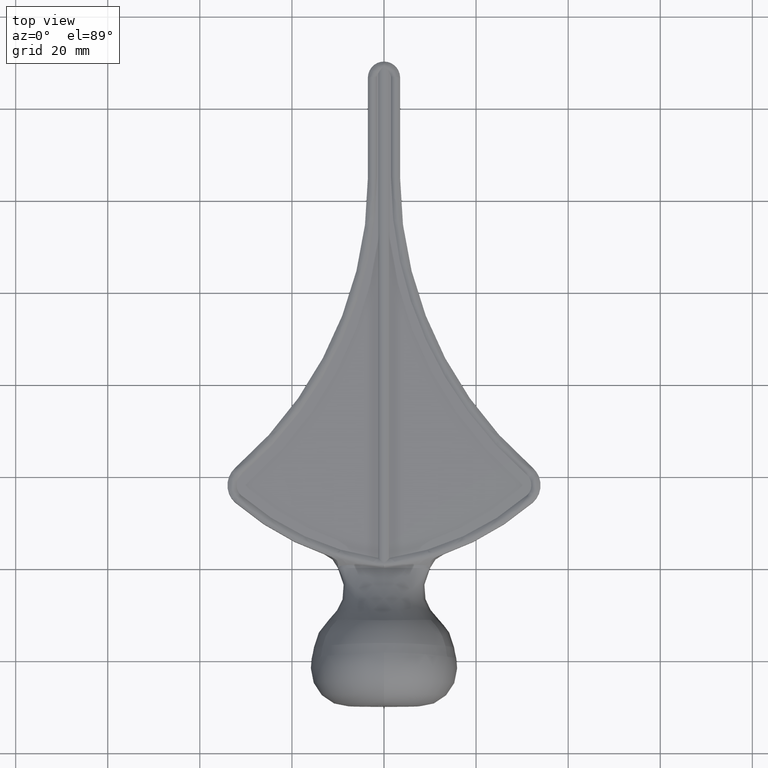
[diagram: clean part render]
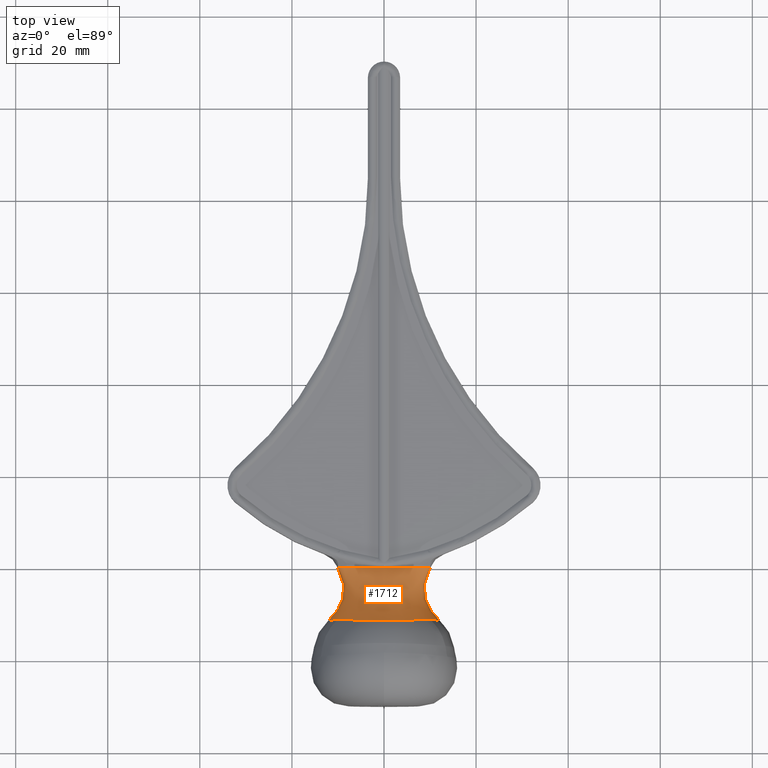
[diagram: same view with one face highlighted and labeled with its STEP entity id]
A machine part, top view. The second image highlights one B-rep face of the part: STEP entity #1712.
In plain terms, the highlighted face is a freeform B-spline surface patch.
Its self-contained STEP definition (entity closure, byte-faithful):
#24 = CARTESIAN_POINT ( 'NONE',  ( -14.79807976622295307, -13.49999999999999822, 8.058841538814844441 ) ) ;
#39 = CARTESIAN_POINT ( 'NONE',  ( -9.920780398255635291, 0.000000000000000000, -0.5799138068464337881 ) ) ;
#58 = CARTESIAN_POINT ( 'NONE',  ( 1.738102099250709465, -11.55873877459060139, -11.02512302721180149 ) ) ;
#101 = CARTESIAN_POINT ( 'NONE',  ( 0.7778716535712940638, -11.55783311141066427, -11.11930339254404920 ) ) ;
#190 = CARTESIAN_POINT ( 'NONE',  ( 0.8048657649686383753, -2.557833111410670046, -3.618924855208206282 ) ) ;
#215 = CARTESIAN_POINT ( 'NONE',  ( -5.017105279613049973, 0.000000000000000000, -2.379088583161654835 ) ) ;
#230 = CARTESIAN_POINT ( 'NONE',  ( -0.07056080905660562508, 0.000000000000000000, -2.749936689291388792 ) ) ;
#290 = CARTESIAN_POINT ( 'NONE',  ( -11.25661552296435453, -11.31668729277588525, 4.214164415989814394 ) ) ;
#295 = CARTESIAN_POINT ( 'NONE',  ( 3.607364614252731805, 0.000000000000000000, -2.614140368541553183 ) ) ;
#305 =( BOUNDED_CURVE ( )  B_SPLINE_CURVE ( 3, ( #5786, #6811, #12513, #2901 ),
 .UNSPECIFIED., .F., .F. ) 
 B_SPLINE_CURVE_WITH_KNOTS ( ( 4, 4 ),
 ( 0.5476375437812448510, 1.000000000000000000 ),
 .UNSPECIFIED. ) 
 CURVE ( )  GEOMETRIC_REPRESENTATION_ITEM ( )  RATIONAL_B_SPLINE_CURVE ( ( 1.000000000000000000, 0.9805718479335734372, 0.9805718479335734372, 1.000000000000000000 ) ) 
 REPRESENTATION_ITEM ( '' )  );
#379 = CARTESIAN_POINT ( 'NONE',  ( 8.650460228036926935, 0.000000000000000000, -1.379868267672305526 ) ) ;
#406 = CARTESIAN_POINT ( 'NONE',  ( 9.991471267502594955, 0.000000000000000000, -0.1142382231562296541 ) ) ;
#452 = CARTESIAN_POINT ( 'NONE',  ( 11.22405447762727881, -11.31017139136639571, 4.183211305914076306 ) ) ;
#539 = CARTESIAN_POINT ( 'NONE',  ( 6.560686561880376466, -11.43058828181606756, -9.456479682900058137 ) ) ;
#581 = CARTESIAN_POINT ( 'NONE',  ( 10.12566088149412202, -11.35045129782749207, -6.099448551371120963 ) ) ;
#584 = CARTESIAN_POINT ( 'NONE',  ( 6.136940722360614942, -11.43978382923295811, -9.705372545133389650 ) ) ;
#659 = CARTESIAN_POINT ( 'NONE',  ( -8.929547355695207855, -11.34926402511476340, 7.613831055689638916 ) ) ;
#691 = CARTESIAN_POINT ( 'NONE',  ( -10.00295216859699998, -4.362651232857618194E-06, 0.03760627262439359547 ) ) ;
#698 = CARTESIAN_POINT ( 'NONE',  ( 10.15598599543717917, -11.32026937856585924, 6.065483669277768719 ) ) ;
#703 = CARTESIAN_POINT ( 'NONE',  ( 1.965892169988797233, -11.50363538718791823, -11.15422705489817012 ) ) ;
#718 = VERTEX_POINT ( 'NONE', #1572 ) ;
#733 = CARTESIAN_POINT ( 'NONE',  ( -3.900842387993377347, -11.46705315637167821, 10.68736818806584132 ) ) ;
#779 = CARTESIAN_POINT ( 'NONE',  ( 8.539450855515456240, -11.35301401544359301, 7.948638750988241242 ) ) ;
#827 = CARTESIAN_POINT ( 'NONE',  ( -1.982506615988486098, -11.49840621901639715, 11.15113312534687218 ) ) ;
#845 = CARTESIAN_POINT ( 'NONE',  ( -1.590975022133877870, -13.49999999999999822, -13.93715592981533291 ) ) ;
#891 = CARTESIAN_POINT ( 'NONE',  ( -7.918258005399948729, -13.49999999999999822, 14.18047830708938761 ) ) ;
#926 = CARTESIAN_POINT ( 'NONE',  ( 9.991366785054234256, 0.000000000000000000, 0.1145396942222438041 ) ) ;
#933 = CARTESIAN_POINT ( 'NONE',  ( -2.143397888626186631, -11.55911066163292489, -10.96704382032714520 ) ) ;
#976 = CARTESIAN_POINT ( 'NONE',  ( 0.09424638433143267546, 0.000000000000000000, -2.749877864549611584 ) ) ;
#1018 = CARTESIAN_POINT ( 'NONE',  ( -2.790007496405103371, -13.49999999999999822, -13.77285986999059375 ) ) ;
#1055 = CARTESIAN_POINT ( 'NONE',  ( 0.09424638433143267546, 0.000000000000000000, -2.749877864549611584 ) ) ;
#1137 = CARTESIAN_POINT ( 'NONE',  ( 1.717647090605003202, 0.000000000000000000, -2.712492312361287183 ) ) ;
#1176 = CARTESIAN_POINT ( 'NONE',  ( 1.335199251863497416, -7.649600508219394079, -6.518159116680444676 ) ) ;
#1200 = CARTESIAN_POINT ( 'NONE',  ( -11.20444264746529939, -11.32793503507644495, -4.211640944872532266 ) ) ;
#1214 = CARTESIAN_POINT ( 'NONE',  ( 0.1250215703381017396, -11.55765573307647820, -11.13429741969730458 ) ) ;
#1223 = EDGE_CURVE ( 'NONE', #718, #2945, #6745, .T. ) ;
#1246 = CARTESIAN_POINT ( 'NONE',  ( -9.991366707272016257, 0.000000000000000000, -0.1145402100517818739 ) ) ;
#1249 = VERTEX_POINT ( 'NONE', #1246 ) ;
#1272 = CARTESIAN_POINT ( 'NONE',  ( -1.818548193513661815, 0.000000000000000000, -2.746539595238569831 ) ) ;
#1281 = CARTESIAN_POINT ( 'NONE',  ( -12.08300563819590145, -11.32391960113699092, -0.5419873673572409567 ) ) ;
#1294 = ORIENTED_EDGE ( 'NONE', *, *, #12206, .F. ) ;
#1326 = CARTESIAN_POINT ( 'NONE',  ( -11.41213739686249440, -11.32622757331808749, -3.706732127521402909 ) ) ;
#1414 =( BOUNDED_CURVE ( )  B_SPLINE_CURVE ( 3, ( #5796, #10617, #10781, #926 ),
 .UNSPECIFIED., .F., .F. ) 
 B_SPLINE_CURVE_WITH_KNOTS ( ( 4, 4 ),
 ( 6.241637736543037107, 6.324845757482896680 ),
 .UNSPECIFIED. ) 
 CURVE ( )  GEOMETRIC_REPRESENTATION_ITEM ( )  RATIONAL_B_SPLINE_CURVE ( ( 1.000000000000000000, 0.9994231186548310220, 0.9994231186548310220, 1.000000000000000000 ) ) 
 REPRESENTATION_ITEM ( '' )  );
#1427 = ORIENTED_EDGE ( 'NONE', *, *, #1562, .F. ) ;
#1437 = CARTESIAN_POINT ( 'NONE',  ( 12.03775609772259436, -11.32508297606502445, -1.104809005413106338 ) ) ;
#1440 = EDGE_CURVE ( 'NONE', #5649, #12624, #3863, .T. ) ;
#1468 = CARTESIAN_POINT ( 'NONE',  ( -4.206561262014433034, 0.000000000000000000, 2.499528057705930895 ) ) ;
#1476 = CARTESIAN_POINT ( 'NONE',  ( -2.512292229807338462, 0.000000000000000000, 2.684523506155640948 ) ) ;
#1482 = CARTESIAN_POINT ( 'NONE',  ( 10.74235572658314197, -11.31270442519472752, 5.152735918509673496 ) ) ;
#1555 = CARTESIAN_POINT ( 'NONE',  ( 0.9821623753829992198, -11.50980761501242000, -11.27038350992660654 ) ) ;
#1562 = EDGE_CURVE ( 'NONE', #6590, #1749, #2572, .T. ) ;
#1572 = CARTESIAN_POINT ( 'NONE',  ( 3.538247560631346580E-09, 0.000000000000000000, -2.750001139633689196 ) ) ;
#1581 = EDGE_CURVE ( 'NONE', #8738, #10687, #12416, .T. ) ;
#1624 = CARTESIAN_POINT ( 'NONE',  ( -9.591221777446248709, -11.33573275451015760, 6.884742862518494988 ) ) ;
#1664 = CARTESIAN_POINT ( 'NONE',  ( -6.590377645211546564, -11.40552213154799688, 9.440590647883892572 ) ) ;
#1668 = CARTESIAN_POINT ( 'NONE',  ( 0.4873753416865656551, -11.51143392821177613, -11.29910693696457180 ) ) ;
#1672 = EDGE_CURVE ( 'NONE', #10687, #5649, #5127, .T. ) ;
#1675 = CARTESIAN_POINT ( 'NONE',  ( -7.803979518995525666, 0.000000000000000000, 1.781015040237565072 ) ) ;
#1683 = ORIENTED_EDGE ( 'NONE', *, *, #3541, .F. ) ;
#1712 = ADVANCED_FACE ( 'NONE', ( #4312, #7531 ), #3975, .T. ) ;
#1749 = VERTEX_POINT ( 'NONE', #5497 ) ;
#1763 = VERTEX_POINT ( 'NONE', #230 ) ;
#1810 = CARTESIAN_POINT ( 'NONE',  ( -0.7719258130183709321, -13.49999999999999822, -13.98678628131670365 ) ) ;
#1900 = CARTESIAN_POINT ( 'NONE',  ( 4.755308293838432121, -2.557848092347381197, 3.661963187981537082 ) ) ;
#1940 = CARTESIAN_POINT ( 'NONE',  ( 12.13850369146165420, -11.63338441487088915, 6.096108625686978755 ) ) ;
#1979 = CARTESIAN_POINT ( 'NONE',  ( -11.89742990760719543, -11.63273948898124921, 6.464673192347961894 ) ) ;
#2022 = CARTESIAN_POINT ( 'NONE',  ( -0.3581075359508330003, -13.49999999999999822, -13.99600971111540204 ) ) ;
#2060 = CARTESIAN_POINT ( 'NONE',  ( 1.969650708290985541, -7.648012384185006063, -6.408781877815489025 ) ) ;
#2125 = CARTESIAN_POINT ( 'NONE',  ( -12.04130542318998565, -11.32388763217734962, -1.077392995488998695 ) ) ;
#2181 = CARTESIAN_POINT ( 'NONE',  ( 3.483891149966416467, 0.000000000000000000, 2.623388164805588563 ) ) ;
#2242 = EDGE_CURVE ( 'NONE', #2457, #1249, #5416, .T. ) ;
#2291 = CARTESIAN_POINT ( 'NONE',  ( -10.44294966343535158, -11.33822428563518869, -5.643017869081620397 ) ) ;
#2311 = CARTESIAN_POINT ( 'NONE',  ( -1.267428613620397826, 0.000000000000000000, 2.750000000000000444 ) ) ;
#2353 = CARTESIAN_POINT ( 'NONE',  ( 9.920780843031661078, 0.000000000000000000, 0.5799132950962100352 ) ) ;
#2433 = CARTESIAN_POINT ( 'NONE',  ( -4.704028950577069601, 0.000000000000000000, 2.431545856199751388 ) ) ;
#2450 = CARTESIAN_POINT ( 'NONE',  ( 11.86471431526952536, -11.32704903864484258, -2.179289536304524599 ) ) ;
#2457 = VERTEX_POINT ( 'NONE', #8666 ) ;
#2484 = CARTESIAN_POINT ( 'NONE',  ( -1.967678824882107991, -11.50230963894100533, -11.15333699048813010 ) ) ;
#2493 = CARTESIAN_POINT ( 'NONE',  ( 8.554359316315652606, 0.000000000000000000, 1.424467059031100602 ) ) ;
#2539 = CARTESIAN_POINT ( 'NONE',  ( 10.74809608991636800, -11.33813682024797842, -5.207529912190639543 ) ) ;
#2565 = CARTESIAN_POINT ( 'NONE',  ( -3.885912291678823127, -11.47806757472296546, -10.69128996976857238 ) ) ;
#2572 =( BOUNDED_CURVE ( )  B_SPLINE_CURVE ( 3, ( #9267, #2433, #1468, #8357 ),
 .UNSPECIFIED., .F., .F. ) 
 B_SPLINE_CURVE_WITH_KNOTS ( ( 4, 4 ),
 ( 0.000000000000000000, 1.000000000000000000 ),
 .UNSPECIFIED. ) 
 CURVE ( )  GEOMETRIC_REPRESENTATION_ITEM ( )  RATIONAL_B_SPLINE_CURVE ( ( 1.000000000000000000, 0.9976922811986916884, 0.9976922811986916884, 1.000000000000000000 ) ) 
 REPRESENTATION_ITEM ( '' )  );
#2607 = CARTESIAN_POINT ( 'NONE',  ( -0.9969714953647207389, -11.50791649545678474, 11.26899515404875274 ) ) ;
#2619 = EDGE_CURVE ( 'NONE', #12624, #8738, #4298, .T. ) ;
#2794 = CARTESIAN_POINT ( 'NONE',  ( -5.633328767162801398, -7.633763159553794253, -5.553887420987364543 ) ) ;
#2840 = CARTESIAN_POINT ( 'NONE',  ( -1.304697826231012492, -7.649215207759135993, -6.527345156914664770 ) ) ;
#2841 = CARTESIAN_POINT ( 'NONE',  ( 9.467839682973181681, 0.000000000000000000, -0.9920921432940967843 ) ) ;
#2872 = CARTESIAN_POINT ( 'NONE',  ( -6.582415218829449799, -11.55752562940256745, 11.23883565491018821 ) ) ;
#2901 = CARTESIAN_POINT ( 'NONE',  ( -8.650543382863443043, 0.000000000000000000, 1.380042693194293291 ) ) ;
#2917 = CARTESIAN_POINT ( 'NONE',  ( -8.718285900791340026, -2.632739488981271858, 1.910436375257487329 ) ) ;
#2945 = VERTEX_POINT ( 'NONE', #3518 ) ;
#2952 = CARTESIAN_POINT ( 'NONE',  ( -10.72739062155373624, -13.49999999999999822, -11.52502944741778457 ) ) ;
#2988 = CARTESIAN_POINT ( 'NONE',  ( -1.039429309596212637E-09, 0.000000000000000000, 2.750001139633767355 ) ) ;
#2997 = CARTESIAN_POINT ( 'NONE',  ( 9.991471267502594955, 0.000000000000000000, -0.1142382231562296541 ) ) ;
#3005 = ORIENTED_EDGE ( 'NONE', *, *, #1581, .T. ) ;
#3038 = CARTESIAN_POINT ( 'NONE',  ( -0.2050713770481494558, -11.55768686087497343, -11.12934276738135964 ) ) ;
#3136 = CARTESIAN_POINT ( 'NONE',  ( -10.13212566385047886, -11.34420167592042894, -6.089007579885199029 ) ) ;
#3174 = CARTESIAN_POINT ( 'NONE',  ( -0.04704125502860500435, 0.000000000000000000, -2.749977179631012625 ) ) ;
#3180 = CARTESIAN_POINT ( 'NONE',  ( -12.04416898614820752, -11.32210899342163835, 1.067509455042764399 ) ) ;
#3253 = VERTEX_POINT ( 'NONE', #5464 ) ;
#3273 = CARTESIAN_POINT ( 'NONE',  ( -8.554442191292029207, 0.000000000000000000, -1.424647693692419281 ) ) ;
#3303 = ORIENTED_EDGE ( 'NONE', *, *, #1672, .T. ) ;
#3423 = CARTESIAN_POINT ( 'NONE',  ( -3.690291615413661130, 0.000000000000000000, 2.556154194163341220 ) ) ;
#3426 = ORIENTED_EDGE ( 'NONE', *, *, #10841, .T. ) ;
#3468 = CARTESIAN_POINT ( 'NONE',  ( 5.179244966894402502, 0.000000000000000000, -2.352557796056500727 ) ) ;
#3493 = CARTESIAN_POINT ( 'NONE',  ( -0.9876867040304029288, -11.50926240774435527, -11.26959886141625056 ) ) ;
#3518 = CARTESIAN_POINT ( 'NONE',  ( 5.179244966894402502, 0.000000000000000000, -2.352557796056500727 ) ) ;
#3532 = CARTESIAN_POINT ( 'NONE',  ( -8.875850048278556059, -11.37097811066028896, -7.615493332760956413 ) ) ;
#3541 = EDGE_CURVE ( 'NONE', #1749, #7705, #5567, .T. ) ;
#3569 = CARTESIAN_POINT ( 'NONE',  ( -5.287606887259710398, -11.43698324179410264, 10.14116796688512068 ) ) ;
#3605 = CARTESIAN_POINT ( 'NONE',  ( -3.427783076647100469, -11.47613719268934673, 10.83154263215471325 ) ) ;
#3648 =( BOUNDED_CURVE ( )  B_SPLINE_CURVE ( 3, ( #11790, #8020, #2181, #9900 ),
 .UNSPECIFIED., .F., .F. ) 
 B_SPLINE_CURVE_WITH_KNOTS ( ( 4, 4 ),
 ( 0.000000000000000000, 1.000000000000000000 ),
 .UNSPECIFIED. ) 
 CURVE ( )  GEOMETRIC_REPRESENTATION_ITEM ( )  RATIONAL_B_SPLINE_CURVE ( ( 1.000000000000000000, 0.9771131948602662654, 0.9771131948602662654, 1.000000000000000000 ) ) 
 REPRESENTATION_ITEM ( '' )  );
#3795 = CARTESIAN_POINT ( 'NONE',  ( -1.304311141729686874, -2.559110661632931993, -3.599118898706217706 ) ) ;
#3842 = CARTESIAN_POINT ( 'NONE',  ( -0.1816988645595144225, 0.000000000000000000, -2.750593084469084459 ) ) ;
#3863 = B_SPLINE_CURVE_WITH_KNOTS ( 'NONE', 3,
 ( #9392, #9350, #11266, #8324, #9408, #539, #584, #9317, #4564, #8494, #6553, #7393, #703, #1555, #1668, #8363, #3493, #2484, #7473, #4528, #2565, #6391, #6478, #8408, #7356, #12268, #3532, #10362, #9361, #6429 ),
 .UNSPECIFIED., .F., .F.,
 ( 4, 2, 2, 2, 2, 2, 2, 2, 2, 2, 2, 2, 2, 2, 4 ),
 ( 0.000000000000000000, 0.002945031415612004745, 0.004417547123418007551, 0.005890062831224011225, 0.007362578539030014899, 0.008835094246836016837, 0.01030760995464202051, 0.01178012566244802418, 0.01325264137025403133, 0.01472515707806003500, 0.01619767278586604214, 0.01767018849367204061, 0.02061521990928405143, 0.02208773561709005337, 0.02356025132489605531 ),
 .UNSPECIFIED. ) ;
#3887 = CARTESIAN_POINT ( 'NONE',  ( 8.133336048776742544, -7.577704326899474374, -2.862804338669963311 ) ) ;
#3902 = CARTESIAN_POINT ( 'NONE',  ( -9.431513069865339105, 0.000000000000000000, -1.025841688907783933 ) ) ;
#3925 = CARTESIAN_POINT ( 'NONE',  ( 4.330974907909594940, -7.650523316059401502, 6.625736443203851245 ) ) ;
#3975 = B_SPLINE_SURFACE_WITH_KNOTS ( 'NONE', 3, 3, ( 
 ( #4757, #8763, #5926, #8808, #976 ),
 ( #1810, #6858, #4887, #10705, #3842 ),
 ( #845, #5887, #7664, #8682, #9702 ),
 ( #1018, #933, #2840, #3795, #7821 ),
 ( #4926, #10624, #7779, #4800, #8641 ),
 ( #2952, #11588, #2794, #6739, #9781 ),
 ( #10579, #9617, #5804, #11537, #5759 ),
 ( #24, #1979, #10663, #2917, #12531 ),
 ( #891, #2872, #12575, #6784, #7742 ),
 ( #7701, #11711, #3925, #1900, #8728 ),
 ( #4844, #1940, #11629, #5847, #12614 ),
 ( #10748, #6822, #3887, #9739, #11675 ),
 ( #5092, #11873, #9905, #6977, #4055 ),
 ( #7901, #10787, #2060, #8930, #4088 ),
 ( #10874, #58, #1176, #11835, #1137 ),
 ( #6052, #101, #7985, #190, #6896 ),
 ( #7017, #1214, #7941, #7060, #8026 ),
 ( #2022, #3038, #11753, #5136, #1055 ) ),
 .UNSPECIFIED., .T., .F., .F.,
 ( 4, 1, 1, 1, 1, 2, 2, 2, 1, 1, 1, 1, 4 ),
 ( 4, 1, 4 ),
 ( 0.000000000000000000, 0.01249999999999995559, 0.02499999999999991118, 0.03750000000000008882, 0.05000000000000004441, 0.2500000000000000000, 0.5000000000000000000, 0.7500000000000000000, 0.9499999999999999556, 0.9625000000000000222, 0.9749999999999999778, 0.9875000000000000444, 1.000000000000000000 ),
 ( 0.000000000000000000, 0.5665484606122270783, 1.000000000000000000 ),
 .UNSPECIFIED. ) ;
#4055 = CARTESIAN_POINT ( 'NONE',  ( 7.031885443312523520, 0.000000000000000000, -2.292028947148796014 ) ) ;
#4088 = CARTESIAN_POINT ( 'NONE',  ( 2.497292277424634221, 0.000000000000000000, -2.666390912543685321 ) ) ;
#4120 = CARTESIAN_POINT ( 'NONE',  ( -11.91465924714824709, -11.32403668084679005, -1.879343647335995904 ) ) ;
#4165 = CARTESIAN_POINT ( 'NONE',  ( 3.538247560631346580E-09, 0.000000000000000000, -2.750001139633689196 ) ) ;
#4248 = VERTEX_POINT ( 'NONE', #10110 ) ;
#4249 = CARTESIAN_POINT ( 'NONE',  ( -10.00295376737375364, 0.0001095655762613008697, -0.03780532852691766144 ) ) ;
#4263 = CARTESIAN_POINT ( 'NONE',  ( 9.431513714688454897, 0.000000000000000000, 1.025841276564314786 ) ) ;
#4280 = CARTESIAN_POINT ( 'NONE',  ( 7.803979802522888143, 0.000000000000000000, -1.781014973607796481 ) ) ;
#4298 = B_SPLINE_CURVE_WITH_KNOTS ( 'NONE', 3,
 ( #11662, #2291, #7158, #1200, #1326, #8011, #8131, #7045, #4120, #2125, #1281, #11939, #3180, #6158, #10862, #290, #5031, #8092 ),
 .UNSPECIFIED., .F., .F.,
 ( 4, 2, 2, 2, 2, 2, 2, 2, 4 ),
 ( 0.000000000000000000, 0.001621267693489050060, 0.003242535386978100120, 0.004053169233722625150, 0.004863803080467150181, 0.006485070773956198506, 0.008106338467445248566, 0.009727606160934296892, 0.01297014154791239701 ),
 .UNSPECIFIED. ) ;
#4312 = FACE_OUTER_BOUND ( 'NONE', #5563, .T. ) ;
#4406 = CARTESIAN_POINT ( 'NONE',  ( 10.46618787234840298, -11.31546937515689066, 5.618341259804578769 ) ) ;
#4454 =( BOUNDED_CURVE ( )  B_SPLINE_CURVE ( 3, ( #8044, #7152, #3174, #9342 ),
 .UNSPECIFIED., .F., .F. ) 
 B_SPLINE_CURVE_WITH_KNOTS ( ( 4, 4 ),
 ( 0.000000000000000000, 1.000000000000000000 ),
 .UNSPECIFIED. ) 
 CURVE ( )  GEOMETRIC_REPRESENTATION_ITEM ( )  RATIONAL_B_SPLINE_CURVE ( ( 1.000000000000000000, 0.9999958508463061557, 0.9999958508463061557, 1.000000000000000000 ) ) 
 REPRESENTATION_ITEM ( '' )  );
#4528 = CARTESIAN_POINT ( 'NONE',  ( -3.416054992384966127, -11.48518145314037930, -10.83449687941042683 ) ) ;
#4564 = CARTESIAN_POINT ( 'NONE',  ( 4.806276143686649682, -11.46594903345711813, -10.35209425859923549 ) ) ;
#4605 = CARTESIAN_POINT ( 'NONE',  ( 4.817048839829287665, -11.44781488450346885, 10.34629614121734775 ) ) ;
#4648 = CARTESIAN_POINT ( 'NONE',  ( -10.15894753418894148, -11.32730661764023949, 6.065108533245825662 ) ) ;
#4735 = CARTESIAN_POINT ( 'NONE',  ( 1.965683092183527103, -11.50027327000008626, 11.15353184038561807 ) ) ;
#4757 = CARTESIAN_POINT ( 'NONE',  ( -0.3581075359508330003, -13.49999999999999822, -13.99600971111540204 ) ) ;
#4800 = CARTESIAN_POINT ( 'NONE',  ( -1.979003900709787045, -2.560825126430609000, -3.546890909539749615 ) ) ;
#4844 = CARTESIAN_POINT ( 'NONE',  ( 15.19336961473864100, -13.49999999999999822, 7.390374138373283053 ) ) ;
#4887 = CARTESIAN_POINT ( 'NONE',  ( -0.2085321076913263794, -7.650658112381217180, -6.604275995352404394 ) ) ;
#4907 = EDGE_CURVE ( 'NONE', #11653, #6906, #5239, .T. ) ;
#4926 = CARTESIAN_POINT ( 'NONE',  ( -3.955719326930950963, -13.49999999999999822, -13.52241322073239083 ) ) ;
#5000 =( BOUNDED_CURVE ( )  B_SPLINE_CURVE ( 3, ( #11756, #2353, #4263, #8110 ),
 .UNSPECIFIED., .F., .F. ) 
 B_SPLINE_CURVE_WITH_KNOTS ( ( 4, 4 ),
 ( 0.04166045030331011478, 0.5444202250430502099 ),
 .UNSPECIFIED. ) 
 CURVE ( )  GEOMETRIC_REPRESENTATION_ITEM ( )  RATIONAL_B_SPLINE_CURVE ( ( 1.000000000000000000, 0.9790467398484552497, 0.9790467398484552497, 1.000000000000000000 ) ) 
 REPRESENTATION_ITEM ( '' )  );
#5031 = CARTESIAN_POINT ( 'NONE',  ( -10.77762224113318723, -11.31812430083189547, 5.171918427914660832 ) ) ;
#5059 = ORIENTED_EDGE ( 'NONE', *, *, #1440, .T. ) ;
#5092 = CARTESIAN_POINT ( 'NONE',  ( 10.12573031659105460, -13.49999999999999822, -11.98981630608371951 ) ) ;
#5127 = B_SPLINE_CURVE_WITH_KNOTS ( 'NONE', 3,
 ( #12143, #4406, #1482, #452, #5458, #6400, #12275, #7280, #9416, #12237, #7444, #8369, #1437, #2450, #11333, #5418, #2539, #7365 ),
 .UNSPECIFIED., .F., .F.,
 ( 4, 2, 2, 2, 2, 2, 2, 2, 4 ),
 ( 0.000000000000000000, 0.001622858173273275095, 0.003245716346546550189, 0.004057145433183188821, 0.004868574519819826585, 0.006491432693093103848, 0.008114290866366381111, 0.009737149039639660109, 0.01298286538618621290 ),
 .UNSPECIFIED. ) ;
#5136 = CARTESIAN_POINT ( 'NONE',  ( 0.09649790314002772151, -2.557686860874984980, -3.631921536337495926 ) ) ;
#5151 = CARTESIAN_POINT ( 'NONE',  ( -5.017105279613049973, 0.000000000000000000, -2.379088583161654835 ) ) ;
#5207 = EDGE_CURVE ( 'NONE', #2945, #11653, #11378, .T. ) ;
#5239 =( BOUNDED_CURVE ( )  B_SPLINE_CURVE ( 3, ( #5712, #2841, #7614, #2997 ),
 .UNSPECIFIED., .F., .T. ) 
 B_SPLINE_CURVE_WITH_KNOTS ( ( 4, 4 ),
 ( 5.757614578550017015, 6.241637736543037107 ),
 .UNSPECIFIED. ) 
 CURVE ( )  GEOMETRIC_REPRESENTATION_ITEM ( )  RATIONAL_B_SPLINE_CURVE ( ( 1.000000000000000000, 0.9805719015527510907, 0.9805719015527510907, 1.000000000000000000 ) ) 
 REPRESENTATION_ITEM ( '' )  );
#5283 = CARTESIAN_POINT ( 'NONE',  ( 8.650460228036926935, 0.000000000000000000, -1.379868267672305526 ) ) ;
#5296 = CARTESIAN_POINT ( 'NONE',  ( -6.476418328139597058, 0.000000000000000000, -2.146094367723736962 ) ) ;
#5332 = VERTEX_POINT ( 'NONE', #9956 ) ;
#5381 = ORIENTED_EDGE ( 'NONE', *, *, #12130, .F. ) ;
#5416 =( BOUNDED_CURVE ( )  B_SPLINE_CURVE ( 3, ( #9674, #3902, #39, #11686 ),
 .UNSPECIFIED., .F., .T. ) 
 B_SPLINE_CURVE_WITH_KNOTS ( ( 4, 4 ),
 ( 0.000000000000000000, 0.4698727520723219864 ),
 .UNSPECIFIED. ) 
 CURVE ( )  GEOMETRIC_REPRESENTATION_ITEM ( )  RATIONAL_B_SPLINE_CURVE ( ( 1.000000000000000000, 0.9790467467946403213, 0.9790467467946403213, 1.000000000000000000 ) ) 
 REPRESENTATION_ITEM ( '' )  );
#5418 = CARTESIAN_POINT ( 'NONE',  ( 11.23200929021592742, -11.33253185455881962, -4.250713636364249481 ) ) ;
#5437 = ORIENTED_EDGE ( 'NONE', *, *, #7817, .F. ) ;
#5458 = CARTESIAN_POINT ( 'NONE',  ( 11.43000740071096466, -11.31040376500047984, 3.676882830286219761 ) ) ;
#5464 = CARTESIAN_POINT ( 'NONE',  ( 5.017086897836471771, 0.000000000000000000, 2.378971139369896015 ) ) ;
#5497 = CARTESIAN_POINT ( 'NONE',  ( -3.690291615413661130, 0.000000000000000000, 2.556154194163341220 ) ) ;
#5539 = CARTESIAN_POINT ( 'NONE',  ( -8.650543382863443043, 0.000000000000000000, 1.380042693194293291 ) ) ;
#5563 = EDGE_LOOP ( 'NONE', ( #12095, #3005, #3303, #5059 ) ) ;
#5567 =( BOUNDED_CURVE ( )  B_SPLINE_CURVE ( 3, ( #3423, #1476, #2311, #8285 ),
 .UNSPECIFIED., .F., .F. ) 
 B_SPLINE_CURVE_WITH_KNOTS ( ( 4, 4 ),
 ( 0.000000000000000000, 1.000000000000000000 ),
 .UNSPECIFIED. ) 
 CURVE ( )  GEOMETRIC_REPRESENTATION_ITEM ( )  RATIONAL_B_SPLINE_CURVE ( ( 1.000000000000000000, 0.9881308253098908256, 0.9881308253098908256, 1.000000000000000000 ) ) 
 REPRESENTATION_ITEM ( '' )  );
#5608 = CARTESIAN_POINT ( 'NONE',  ( 9.871908587388150025, -11.32466513703329802, 6.474968801917034611 ) ) ;
#5649 = VERTEX_POINT ( 'NONE', #581 ) ;
#5650 = CARTESIAN_POINT ( 'NONE',  ( 0.4894767511699893436, -11.51151059843039626, 11.29896349338165962 ) ) ;
#5658 = EDGE_LOOP ( 'NONE', ( #11260, #7621, #12568, #3426, #8291, #8538, #1683, #1427, #8876, #10376, #1294, #12121, #5381, #5437, #9473, #10590 ) ) ;
#5697 = CARTESIAN_POINT ( 'NONE',  ( -7.808967602033493272, -11.37550921536735160, 8.584053809412935721 ) ) ;
#5712 = CARTESIAN_POINT ( 'NONE',  ( 8.650460228036926935, 0.000000000000000000, -1.379868267672305526 ) ) ;
#5759 = CARTESIAN_POINT ( 'NONE',  ( -9.957943075774704056, 0.000000000000000000, -1.240076850811314468 ) ) ;
#5786 = CARTESIAN_POINT ( 'NONE',  ( -9.991471552129073785, 0.000000000000000000, 0.1142363216417262017 ) ) ;
#5796 = CARTESIAN_POINT ( 'NONE',  ( 9.991471267502594955, 0.000000000000000000, -0.1142382231562296541 ) ) ;
#5804 = CARTESIAN_POINT ( 'NONE',  ( -8.114904084150328600, -7.577169776966161230, -2.922426006643327412 ) ) ;
#5847 = CARTESIAN_POINT ( 'NONE',  ( 8.612430718025688492, -2.633384414870854950, 2.025220899658073836 ) ) ;
#5887 = CARTESIAN_POINT ( 'NONE',  ( -1.187115966824007884, -11.55801987820164989, -11.08992251356565362 ) ) ;
#5926 = CARTESIAN_POINT ( 'NONE',  ( 0.01538297863680032282, -7.650690362913564968, -6.603484523742777945 ) ) ;
#6031 = EDGE_CURVE ( 'NONE', #4248, #5332, #305, .T. ) ;
#6040 = CARTESIAN_POINT ( 'NONE',  ( 5.179244966894402502, 0.000000000000000000, -2.352557796056500727 ) ) ;
#6052 = CARTESIAN_POINT ( 'NONE',  ( 0.8763645763491456631, -13.49999999999999822, -13.99214947369025985 ) ) ;
#6158 = CARTESIAN_POINT ( 'NONE',  ( -11.87734759193439871, -11.31976338339444155, 2.142178896705798863 ) ) ;
#6229 = EDGE_CURVE ( 'NONE', #7705, #3253, #3648, .T. ) ;
#6274 = CARTESIAN_POINT ( 'NONE',  ( -3.504956358080188128, 0.000000000000000000, -2.620028364685615951 ) ) ;
#6278 = CARTESIAN_POINT ( 'NONE',  ( 6.622360683281715232, 0.000000000000000000, -2.112143778594417043 ) ) ;
#6391 = CARTESIAN_POINT ( 'NONE',  ( -4.807682056946222637, -11.46202055242260975, -10.35007689196905645 ) ) ;
#6400 = CARTESIAN_POINT ( 'NONE',  ( 11.67660468274582009, -11.31197911579529425, 2.902653689081419852 ) ) ;
#6429 = CARTESIAN_POINT ( 'NONE',  ( -10.13212566385047886, -11.34420167592042894, -6.089007579885199029 ) ) ;
#6478 = CARTESIAN_POINT ( 'NONE',  ( -5.260964117400567019, -11.45314578153078955, -10.15142443413722795 ) ) ;
#6520 = CARTESIAN_POINT ( 'NONE',  ( -6.622360645363006171, 0.000000000000000000, 2.112143764546075442 ) ) ;
#6548 = CARTESIAN_POINT ( 'NONE',  ( 6.599132392722254714, -11.40334231394409059, 9.466969200766188308 ) ) ;
#6553 = CARTESIAN_POINT ( 'NONE',  ( 3.406798243695748241, -11.48810299798497425, -10.83798202314874359 ) ) ;
#6590 = VERTEX_POINT ( 'NONE', #11016 ) ;
#6676 = CARTESIAN_POINT ( 'NONE',  ( -4.833612246133171197, -11.44741575776896703, 10.34118522481826830 ) ) ;
#6739 = CARTESIAN_POINT ( 'NONE',  ( -5.911630351000132677, -2.574024779568617305, -3.107681274243518477 ) ) ;
#6745 =( BOUNDED_CURVE ( )  B_SPLINE_CURVE ( 3, ( #4165, #9038, #295, #6040 ),
 .UNSPECIFIED., .F., .F. ) 
 B_SPLINE_CURVE_WITH_KNOTS ( ( 4, 4 ),
 ( 4.712388980738514199, 5.256809300719937461 ),
 .UNSPECIFIED. ) 
 CURVE ( )  GEOMETRIC_REPRESENTATION_ITEM ( )  RATIONAL_B_SPLINE_CURVE ( ( 1.000000000000000000, 0.9754526825197749051, 0.9754526825197749051, 1.000000000000000000 ) ) 
 REPRESENTATION_ITEM ( '' )  );
#6784 = CARTESIAN_POINT ( 'NONE',  ( -4.948304100118495086, -2.557525629402589651, 3.601879884693462319 ) ) ;
#6811 = CARTESIAN_POINT ( 'NONE',  ( -9.923694783952031528, 0.000000000000000000, 0.5619099703440878502 ) ) ;
#6822 = CARTESIAN_POINT ( 'NONE',  ( 11.83893244249043875, -11.62813204291868274, -5.203742629302736233 ) ) ;
#6858 = CARTESIAN_POINT ( 'NONE',  ( -0.5351643244344006511, -11.55771798867347044, -11.12438811506541647 ) ) ;
#6896 = CARTESIAN_POINT ( 'NONE',  ( 0.9166797086305946696, 0.000000000000000000, -2.741584765018384218 ) ) ;
#6906 = VERTEX_POINT ( 'NONE', #406 ) ;
#6977 = CARTESIAN_POINT ( 'NONE',  ( 6.072400460095165542, -2.572302827443434303, -3.022619778591096651 ) ) ;
#7017 = CARTESIAN_POINT ( 'NONE',  ( 0.05571074111670491769, -13.49999999999999822, -14.00523314091410221 ) ) ;
#7045 = CARTESIAN_POINT ( 'NONE',  ( -11.86157167266242674, -11.32411985020923950, -2.146775981191907157 ) ) ;
#7060 = CARTESIAN_POINT ( 'NONE',  ( 0.3344262808272034371, -2.557655733076487969, -3.630232457194288109 ) ) ;
#7095 = EDGE_CURVE ( 'NONE', #5332, #6590, #9922, .T. ) ;
#7152 = CARTESIAN_POINT ( 'NONE',  ( -0.02352070070755387168, 0.000000000000000000, -2.749999999999999556 ) ) ;
#7158 = CARTESIAN_POINT ( 'NONE',  ( -10.72006348071302817, -11.33393001328220606, -5.178610511472069966 ) ) ;
#7280 = CARTESIAN_POINT ( 'NONE',  ( 11.87243897482549215, -11.31440019033001754, 2.113767270647547214 ) ) ;
#7356 = CARTESIAN_POINT ( 'NONE',  ( -7.398779062766234205, -11.40578505141459154, -8.928102908425444184 ) ) ;
#7365 = CARTESIAN_POINT ( 'NONE',  ( 10.12566088149412202, -11.35045129782749207, -6.099448551371120963 ) ) ;
#7367 = CARTESIAN_POINT ( 'NONE',  ( 9.991366785054234256, 0.000000000000000000, 0.1145396942222438041 ) ) ;
#7393 = CARTESIAN_POINT ( 'NONE',  ( 2.450773036840581121, -11.49918381635666442, -11.06756206450538826 ) ) ;
#7444 = CARTESIAN_POINT ( 'NONE',  ( 12.08556724678415328, -11.32054182972392020, 0.5054283558484379268 ) ) ;
#7473 = CARTESIAN_POINT ( 'NONE',  ( -2.458163608123940413, -11.49727549918342717, -11.06541699447719651 ) ) ;
#7531 = FACE_OUTER_BOUND ( 'NONE', #5658, .T. ) ;
#7614 = CARTESIAN_POINT ( 'NONE',  ( 9.923693658015460883, 0.000000000000000000, -0.5619109688282465376 ) ) ;
#7621 = ORIENTED_EDGE ( 'NONE', *, *, #4907, .T. ) ;
#7664 = CARTESIAN_POINT ( 'NONE',  ( -0.6532439203052460286, -7.650345334142359732, -6.590801577841820524 ) ) ;
#7701 = CARTESIAN_POINT ( 'NONE',  ( 8.634473077301624500, -13.49999999999999822, 13.81154111514142002 ) ) ;
#7705 = VERTEX_POINT ( 'NONE', #2988 ) ;
#7712 = EDGE_CURVE ( 'NONE', #6906, #7962, #1414, .T. ) ;
#7742 = CARTESIAN_POINT ( 'NONE',  ( -5.613151362150392565, 0.000000000000000000, 2.735573466160150069 ) ) ;
#7779 = CARTESIAN_POINT ( 'NONE',  ( -1.939505953739766086, -7.647438904741128418, -6.422404988839028661 ) ) ;
#7817 = EDGE_CURVE ( 'NONE', #1763, #9766, #10688, .T. ) ;
#7821 = CARTESIAN_POINT ( 'NONE',  ( -1.531428326223125858, 0.000000000000000000, -2.720913560660816355 ) ) ;
#7888 = CARTESIAN_POINT ( 'NONE',  ( -10.15894753418894148, -11.32730661764023949, 6.065108533245825662 ) ) ;
#7901 = CARTESIAN_POINT ( 'NONE',  ( 3.259624712754605635, -13.49999999999999822, -13.68323313350932935 ) ) ;
#7941 = CARTESIAN_POINT ( 'NONE',  ( 0.2392980649649270319, -7.650722613445911868, -6.602693052133151497 ) ) ;
#7962 = VERTEX_POINT ( 'NONE', #7367 ) ;
#7985 = CARTESIAN_POINT ( 'NONE',  ( 0.6839615879725771119, -7.650538837336441134, -6.586167915092296710 ) ) ;
#8011 = CARTESIAN_POINT ( 'NONE',  ( -11.66201026068316615, -11.32479393713481919, -2.934219145028816200 ) ) ;
#8020 = CARTESIAN_POINT ( 'NONE',  ( 1.772353980183213107, 0.000000000000000000, 2.750001371562176278 ) ) ;
#8025 = CARTESIAN_POINT ( 'NONE',  ( -5.017105279613049973, 0.000000000000000000, -2.379088583161654835 ) ) ;
#8026 = CARTESIAN_POINT ( 'NONE',  ( 0.3701916332223797457, 0.000000000000000000, -2.749162644630138708 ) ) ;
#8044 = CARTESIAN_POINT ( 'NONE',  ( 3.538247560631346580E-09, 0.000000000000000000, -2.750001139633689196 ) ) ;
#8092 = CARTESIAN_POINT ( 'NONE',  ( -10.15894753418894148, -11.32730661764023949, 6.065108533245825662 ) ) ;
#8094 = CARTESIAN_POINT ( 'NONE',  ( -9.991366707272016257, 0.000000000000000000, -0.1145402100517818739 ) ) ;
#8110 = CARTESIAN_POINT ( 'NONE',  ( 8.554359316315652606, 0.000000000000000000, 1.424467059031100602 ) ) ;
#8131 = CARTESIAN_POINT ( 'NONE',  ( -11.73530284442647798, -11.32449851647957928, -2.673747699341465722 ) ) ;
#8285 = CARTESIAN_POINT ( 'NONE',  ( -1.039429309596212637E-09, 0.000000000000000000, 2.750001139633767355 ) ) ;
#8291 = ORIENTED_EDGE ( 'NONE', *, *, #10474, .T. ) ;
#8324 = CARTESIAN_POINT ( 'NONE',  ( 7.775712392863871614, -11.40295575807885164, -8.605694693880030499 ) ) ;
#8357 = CARTESIAN_POINT ( 'NONE',  ( -3.690291615413661130, 0.000000000000000000, 2.556154194163341220 ) ) ;
#8363 = CARTESIAN_POINT ( 'NONE',  ( -0.4966705178861001713, -11.51122188712706240, -11.29859074020940568 ) ) ;
#8369 = CARTESIAN_POINT ( 'NONE',  ( 12.08101574205383244, -11.32400851630009164, -0.5678710953183032650 ) ) ;
#8408 = CARTESIAN_POINT ( 'NONE',  ( -6.584089128821728032, -11.42537061649315966, -9.474799578277716350 ) ) ;
#8419 = CARTESIAN_POINT ( 'NONE',  ( 7.680523352889144562, 0.000000000000000000, 1.821149036331858095 ) ) ;
#8442 = CARTESIAN_POINT ( 'NONE',  ( -7.411479862147641207, -11.38526499169412176, 8.887839454481442303 ) ) ;
#8488 = CARTESIAN_POINT ( 'NONE',  ( 2.457944693067113384, -11.49363133533761783, 11.06524083291212968 ) ) ;
#8494 = CARTESIAN_POINT ( 'NONE',  ( 3.877921716865944113, -11.48129879214600635, -10.69498971544180854 ) ) ;
#8503 = CARTESIAN_POINT ( 'NONE',  ( 10.15598599543717917, -11.32026937856585924, 6.065483669277768719 ) ) ;
#8538 = ORIENTED_EDGE ( 'NONE', *, *, #6229, .F. ) ;
#8623 = CARTESIAN_POINT ( 'NONE',  ( 7.416222468433520731, -11.38099868136269066, 8.917985624156665736 ) ) ;
#8641 = CARTESIAN_POINT ( 'NONE',  ( -2.314094790768805865, 0.000000000000000000, -2.678861501855506866 ) ) ;
#8666 = CARTESIAN_POINT ( 'NONE',  ( -8.554442191292029207, 0.000000000000000000, -1.424647693692419281 ) ) ;
#8682 = CARTESIAN_POINT ( 'NONE',  ( -0.6123219603089335994, -2.558019878201656105, -3.629032419656577524 ) ) ;
#8728 = CARTESIAN_POINT ( 'NONE',  ( 5.424658593487520442, 0.000000000000000000, 2.764182262939074430 ) ) ;
#8738 = VERTEX_POINT ( 'NONE', #7888 ) ;
#8763 = CARTESIAN_POINT ( 'NONE',  ( -0.2050713770481494558, -11.55768686087497343, -11.12934276738135964 ) ) ;
#8808 = CARTESIAN_POINT ( 'NONE',  ( 0.09649790314002772151, -2.557686860874984980, -3.631921536337495926 ) ) ;
#8876 = ORIENTED_EDGE ( 'NONE', *, *, #7095, .F. ) ;
#8930 = CARTESIAN_POINT ( 'NONE',  ( 2.166347339367074465, -2.560271611456663710, -3.517386224314071441 ) ) ;
#9004 = B_SPLINE_CURVE_WITH_KNOTS ( 'NONE', 3,
 ( #8094, #4249, #691, #9472 ),
 .UNSPECIFIED., .F., .F.,
 ( 4, 4 ),
 ( 0.000000000000000000, 1.000000000000000000 ),
 .UNSPECIFIED. ) ;
#9038 = CARTESIAN_POINT ( 'NONE',  ( 1.837511798027630538, 0.000000000000000000, -2.749999999821206575 ) ) ;
#9069 = CARTESIAN_POINT ( 'NONE',  ( -0.07056080905660562508, 0.000000000000000000, -2.749936689291388792 ) ) ;
#9198 = CARTESIAN_POINT ( 'NONE',  ( 8.554359316315652606, 0.000000000000000000, 1.424467059031100602 ) ) ;
#9267 = CARTESIAN_POINT ( 'NONE',  ( -5.179266577519098469, 0.000000000000000000, 2.352689570480185566 ) ) ;
#9317 = CARTESIAN_POINT ( 'NONE',  ( 5.260806974357097765, -11.45744565324477904, -10.15280449437785570 ) ) ;
#9342 = CARTESIAN_POINT ( 'NONE',  ( -0.07056080905660562508, 0.000000000000000000, -2.749936689291388792 ) ) ;
#9350 = CARTESIAN_POINT ( 'NONE',  ( 9.557210186245766792, -11.36169772676816869, -6.914010073095264275 ) ) ;
#9361 = CARTESIAN_POINT ( 'NONE',  ( -9.848219035934834054, -11.34966142395109401, -6.496374562642056816 ) ) ;
#9392 = CARTESIAN_POINT ( 'NONE',  ( 10.12566088149412202, -11.35045129782749207, -6.099448551371120963 ) ) ;
#9408 = CARTESIAN_POINT ( 'NONE',  ( 7.379121271476631883, -11.41219648881168069, -8.907583737257528611 ) ) ;
#9416 = CARTESIAN_POINT ( 'NONE',  ( 11.92419582955237622, -11.31537157798512538, 1.845883596316868047 ) ) ;
#9437 = CARTESIAN_POINT ( 'NONE',  ( 5.272289356879039879, -11.43680404550454810, 10.14648117709936415 ) ) ;
#9472 = CARTESIAN_POINT ( 'NONE',  ( -9.991471552129073785, 0.000000000000000000, 0.1142363216417262017 ) ) ;
#9473 = ORIENTED_EDGE ( 'NONE', *, *, #12610, .F. ) ;
#9520 = CARTESIAN_POINT ( 'NONE',  ( -6.165493290285644967, -11.41604819004572846, 9.691050195950056789 ) ) ;
#9617 = CARTESIAN_POINT ( 'NONE',  ( -12.03179146957401002, -11.62864798363038865, -4.844882825125221615 ) ) ;
#9674 = CARTESIAN_POINT ( 'NONE',  ( -8.554442191292029207, 0.000000000000000000, -1.424647693692419281 ) ) ;
#9702 = CARTESIAN_POINT ( 'NONE',  ( -0.7286092438696062379, 0.000000000000000000, -2.745849174124344927 ) ) ;
#9739 = CARTESIAN_POINT ( 'NONE',  ( 8.664388237969673057, -2.628132042918715605, -1.514850701385294984 ) ) ;
#9766 = VERTEX_POINT ( 'NONE', #8025 ) ;
#9781 = CARTESIAN_POINT ( 'NONE',  ( -6.873541084018548020, 0.000000000000000000, -2.328070292600798119 ) ) ;
#9900 = CARTESIAN_POINT ( 'NONE',  ( 5.017086897836471771, 0.000000000000000000, 2.378971139369896015 ) ) ;
#9905 = CARTESIAN_POINT ( 'NONE',  ( 5.660464904218783566, -7.635547219956237974, -5.514265397952478942 ) ) ;
#9922 =( BOUNDED_CURVE ( )  B_SPLINE_CURVE ( 3, ( #5539, #1675, #6520, #10488 ),
 .UNSPECIFIED., .F., .F. ) 
 B_SPLINE_CURVE_WITH_KNOTS ( ( 4, 4 ),
 ( 0.000000000000000000, 1.000000000000000000 ),
 .UNSPECIFIED. ) 
 CURVE ( )  GEOMETRIC_REPRESENTATION_ITEM ( )  RATIONAL_B_SPLINE_CURVE ( ( 1.000000000000000000, 0.9792084949659641824, 0.9792084949659641824, 1.000000000000000000 ) ) 
 REPRESENTATION_ITEM ( '' )  );
#9956 = CARTESIAN_POINT ( 'NONE',  ( -8.650543382863443043, 0.000000000000000000, 1.380042693194293291 ) ) ;
#10110 = CARTESIAN_POINT ( 'NONE',  ( -9.991471552129073785, 0.000000000000000000, 0.1142363216417262017 ) ) ;
#10362 = CARTESIAN_POINT ( 'NONE',  ( -9.539709601818795903, -11.35616225771144450, -6.882740752498015979 ) ) ;
#10376 = ORIENTED_EDGE ( 'NONE', *, *, #6031, .F. ) ;
#10397 = CARTESIAN_POINT ( 'NONE',  ( 8.897562835486942490, -11.34457720785760415, 7.599414049255027948 ) ) ;
#10441 = CARTESIAN_POINT ( 'NONE',  ( -2.468615950082234001, -11.49181132818805651, 11.06342855569950778 ) ) ;
#10462 =( BOUNDED_CURVE ( )  B_SPLINE_CURVE ( 3, ( #2493, #8419, #11292, #11249 ),
 .UNSPECIFIED., .F., .F. ) 
 B_SPLINE_CURVE_WITH_KNOTS ( ( 4, 4 ),
 ( 0.5444202250430502099, 1.045225564284998354 ),
 .UNSPECIFIED. ) 
 CURVE ( )  GEOMETRIC_REPRESENTATION_ITEM ( )  RATIONAL_B_SPLINE_CURVE ( ( 1.000000000000000000, 0.9792084807358263365, 0.9792084807358263365, 1.000000000000000000 ) ) 
 REPRESENTATION_ITEM ( '' )  );
#10474 = EDGE_CURVE ( 'NONE', #11788, #3253, #10462, .T. ) ;
#10488 = CARTESIAN_POINT ( 'NONE',  ( -5.179266577519098469, 0.000000000000000000, 2.352689570480185566 ) ) ;
#10579 = CARTESIAN_POINT ( 'NONE',  ( -15.15384062988706404, -13.49999999999999822, -5.845452570654463997 ) ) ;
#10590 = ORIENTED_EDGE ( 'NONE', *, *, #1223, .T. ) ;
#10617 = CARTESIAN_POINT ( 'NONE',  ( 10.00289388505174237, 0.000000000000000000, -0.03799276117950388387 ) ) ;
#10624 = CARTESIAN_POINT ( 'NONE',  ( -3.073400903378245452, -11.56082512643060767, -10.77606360373832395 ) ) ;
#10663 = CARTESIAN_POINT ( 'NONE',  ( -8.075734781890385960, -7.572930697042913550, 3.582781817721825579 ) ) ;
#10687 = VERTEX_POINT ( 'NONE', #8503 ) ;
#10688 =( BOUNDED_CURVE ( )  B_SPLINE_CURVE ( 3, ( #9069, #1272, #6274, #5151 ),
 .UNSPECIFIED., .F., .F. ) 
 B_SPLINE_CURVE_WITH_KNOTS ( ( 4, 4 ),
 ( 0.000000000000000000, 1.000000000000000000 ),
 .UNSPECIFIED. ) 
 CURVE ( )  GEOMETRIC_REPRESENTATION_ITEM ( )  RATIONAL_B_SPLINE_CURVE ( ( 1.000000000000000000, 0.9777204296619986801, 0.9777204296619986801, 1.000000000000000000 ) ) 
 REPRESENTATION_ITEM ( '' )  );
#10705 = CARTESIAN_POINT ( 'NONE',  ( -0.1414304745471479663, -2.557717988673482434, -3.633610615480703743 ) ) ;
#10748 = CARTESIAN_POINT ( 'NONE',  ( 14.83760875107453003, -13.49999999999999822, -6.513919971096033379 ) ) ;
#10781 = CARTESIAN_POINT ( 'NONE',  ( 10.00287822637798740, 0.000000000000000000, 0.03830326985210357610 ) ) ;
#10787 = CARTESIAN_POINT ( 'NONE',  ( 2.674538633348908956, -11.56027161145667748, -10.86208233838304871 ) ) ;
#10841 = EDGE_CURVE ( 'NONE', #7962, #11788, #5000, .T. ) ;
#10862 = CARTESIAN_POINT ( 'NONE',  ( -11.75091409408475052, -11.31851031094663540, 2.673928007937190987 ) ) ;
#10874 = CARTESIAN_POINT ( 'NONE',  ( 2.082432947697860470, -13.49999999999999822, -13.88145974311121122 ) ) ;
#11016 = CARTESIAN_POINT ( 'NONE',  ( -5.179266577519098469, 0.000000000000000000, 2.352689570480185566 ) ) ;
#11065 = CARTESIAN_POINT ( 'NONE',  ( -7.680522780177462927, 0.000000000000000000, -1.821149177472431102 ) ) ;
#11249 = CARTESIAN_POINT ( 'NONE',  ( 5.017086897836471771, 0.000000000000000000, 2.378971139369896015 ) ) ;
#11260 = ORIENTED_EDGE ( 'NONE', *, *, #5207, .T. ) ;
#11266 = CARTESIAN_POINT ( 'NONE',  ( 8.895873673726395481, -11.37688122203235075, -7.639708294880043660 ) ) ;
#11292 = CARTESIAN_POINT ( 'NONE',  ( 6.476418533006317979, 0.000000000000000000, 2.146094356203332776 ) ) ;
#11333 = CARTESIAN_POINT ( 'NONE',  ( 11.73509709533818857, -11.32797057945451868, -2.711161045020945348 ) ) ;
#11357 = CARTESIAN_POINT ( 'NONE',  ( 9.562891422997770619, -11.33042588703214015, 6.863211650627547122 ) ) ;
#11378 =( BOUNDED_CURVE ( )  B_SPLINE_CURVE ( 3, ( #3468, #6278, #4280, #379 ),
 .UNSPECIFIED., .F., .F. ) 
 B_SPLINE_CURVE_WITH_KNOTS ( ( 4, 4 ),
 ( 5.256809300719937461, 5.757614578550017015 ),
 .UNSPECIFIED. ) 
 CURVE ( )  GEOMETRIC_REPRESENTATION_ITEM ( )  RATIONAL_B_SPLINE_CURVE ( ( 1.000000000000000000, 0.9792084858083254240, 0.9792084858083254240, 1.000000000000000000 ) ) 
 REPRESENTATION_ITEM ( '' )  );
#11441 = CARTESIAN_POINT ( 'NONE',  ( -0.4989523392129313062, -11.51079093379079410, 11.29861709599844488 ) ) ;
#11537 = CARTESIAN_POINT ( 'NONE',  ( -8.579704091757154316, -2.628647983630379770, -1.633675118547149641 ) ) ;
#11588 = CARTESIAN_POINT ( 'NONE',  ( -8.481220863788765385, -11.57402477956866171, -9.235214851576209583 ) ) ;
#11612 =( BOUNDED_CURVE ( )  B_SPLINE_CURVE ( 3, ( #215, #5296, #11065, #3273 ),
 .UNSPECIFIED., .F., .F. ) 
 B_SPLINE_CURVE_WITH_KNOTS ( ( 4, 4 ),
 ( 0.000000000000000000, 1.000000000000000000 ),
 .UNSPECIFIED. ) 
 CURVE ( )  GEOMETRIC_REPRESENTATION_ITEM ( )  RATIONAL_B_SPLINE_CURVE ( ( 1.000000000000000000, 0.9792084949657011705, 0.9792084949657011705, 1.000000000000000000 ) ) 
 REPRESENTATION_ITEM ( '' )  );
#11629 = CARTESIAN_POINT ( 'NONE',  ( 8.052694826107375192, -7.572262509626264126, 3.648756113919793709 ) ) ;
#11653 = VERTEX_POINT ( 'NONE', #5283 ) ;
#11662 = CARTESIAN_POINT ( 'NONE',  ( -10.13212566385047886, -11.34420167592042894, -6.089007579885199029 ) ) ;
#11675 = CARTESIAN_POINT ( 'NONE',  ( 10.04116866640429784, 0.000000000000000000, -1.188241339429024102 ) ) ;
#11686 = CARTESIAN_POINT ( 'NONE',  ( -9.991366707272016257, 0.000000000000000000, -0.1145402100517818739 ) ) ;
#11711 = CARTESIAN_POINT ( 'NONE',  ( 6.992557972925751208, -11.55784809234739186, 11.01984987985251330 ) ) ;
#11753 = CARTESIAN_POINT ( 'NONE',  ( 0.01538297863680032282, -7.650690362913564968, -6.603484523742777945 ) ) ;
#11756 = CARTESIAN_POINT ( 'NONE',  ( 9.991366785054234256, 0.000000000000000000, 0.1145396942222438041 ) ) ;
#11788 = VERTEX_POINT ( 'NONE', #9198 ) ;
#11790 = CARTESIAN_POINT ( 'NONE',  ( -1.039429309596212637E-09, 0.000000000000000000, 2.750001139633767355 ) ) ;
#11835 = CARTESIAN_POINT ( 'NONE',  ( 1.494874606326839439, -2.558738774590605392, -3.579178914623473151 ) ) ;
#11873 = CARTESIAN_POINT ( 'NONE',  ( 8.135621737348690985, -11.57230282744332861, -9.484112029352537832 ) ) ;
#11939 = CARTESIAN_POINT ( 'NONE',  ( -12.08435994798348645, -11.32313265610152797, 0.5303049569634212812 ) ) ;
#12095 = ORIENTED_EDGE ( 'NONE', *, *, #2619, .T. ) ;
#12121 = ORIENTED_EDGE ( 'NONE', *, *, #2242, .F. ) ;
#12130 = EDGE_CURVE ( 'NONE', #9766, #2457, #11612, .T. ) ;
#12143 = CARTESIAN_POINT ( 'NONE',  ( 10.15598599543717917, -11.32026937856585924, 6.065483669277768719 ) ) ;
#12206 = EDGE_CURVE ( 'NONE', #1249, #4248, #9004, .T. ) ;
#12237 = CARTESIAN_POINT ( 'NONE',  ( 12.04682941958244058, -11.31839134983219530, 1.041790427081668247 ) ) ;
#12268 = CARTESIAN_POINT ( 'NONE',  ( -8.518745024350053541, -11.37933175485752102, -7.963101799658322655 ) ) ;
#12275 = CARTESIAN_POINT ( 'NONE',  ( 11.74870607214997875, -11.31270596583764210, 2.641661781200087322 ) ) ;
#12380 = CARTESIAN_POINT ( 'NONE',  ( 3.419846194908410020, -11.47759185224812661, 10.83307322173087606 ) ) ;
#12416 = B_SPLINE_CURVE_WITH_KNOTS ( 'NONE', 3,
 ( #4648, #1624, #659, #5697, #8442, #1664, #9520, #3569, #6676, #733, #3605, #10441, #827, #2607, #11441, #5650, #12421, #4735, #8488, #12380, #12461, #4605, #9437, #6548, #8623, #779, #10397, #11357, #5608, #698 ),
 .UNSPECIFIED., .F., .F.,
 ( 4, 2, 2, 2, 2, 2, 2, 2, 2, 2, 2, 2, 2, 2, 4 ),
 ( 8.673617379884035472E-19, 0.002952716372241383311, 0.004429074558362071715, 0.005905432744482760551, 0.007381790930603448521, 0.008858149116724136490, 0.01033450730284482533, 0.01181086548896551416, 0.01328722367508619953, 0.01476358186120688490, 0.01623994004732757374, 0.01771629823344826257, 0.02066901460568963678, 0.02214537279181032561, 0.02362173097793100751 ),
 .UNSPECIFIED. ) ;
#12421 = CARTESIAN_POINT ( 'NONE',  ( 0.9824076697643342460, -11.50921162489216343, 11.27004696225267644 ) ) ;
#12461 = CARTESIAN_POINT ( 'NONE',  ( 3.891627860600071820, -11.46818644885347460, 10.68917984472221150 ) ) ;
#12513 = CARTESIAN_POINT ( 'NONE',  ( -9.467840574509956753, 0.000000000000000000, 0.9920917860573748026 ) ) ;
#12531 = CARTESIAN_POINT ( 'NONE',  ( -10.05157186523299906, 0.000000000000000000, 1.491781113209069476 ) ) ;
#12568 = ORIENTED_EDGE ( 'NONE', *, *, #7712, .T. ) ;
#12575 = CARTESIAN_POINT ( 'NONE',  ( -4.361740865183193705, -7.650857409767723993, 6.581232604281710863 ) ) ;
#12610 = EDGE_CURVE ( 'NONE', #718, #1763, #4454, .T. ) ;
#12614 = CARTESIAN_POINT ( 'NONE',  ( 9.947539876945999282, 0.000000000000000000, 1.543616624591358066 ) ) ;
#12624 = VERTEX_POINT ( 'NONE', #3136 ) ;